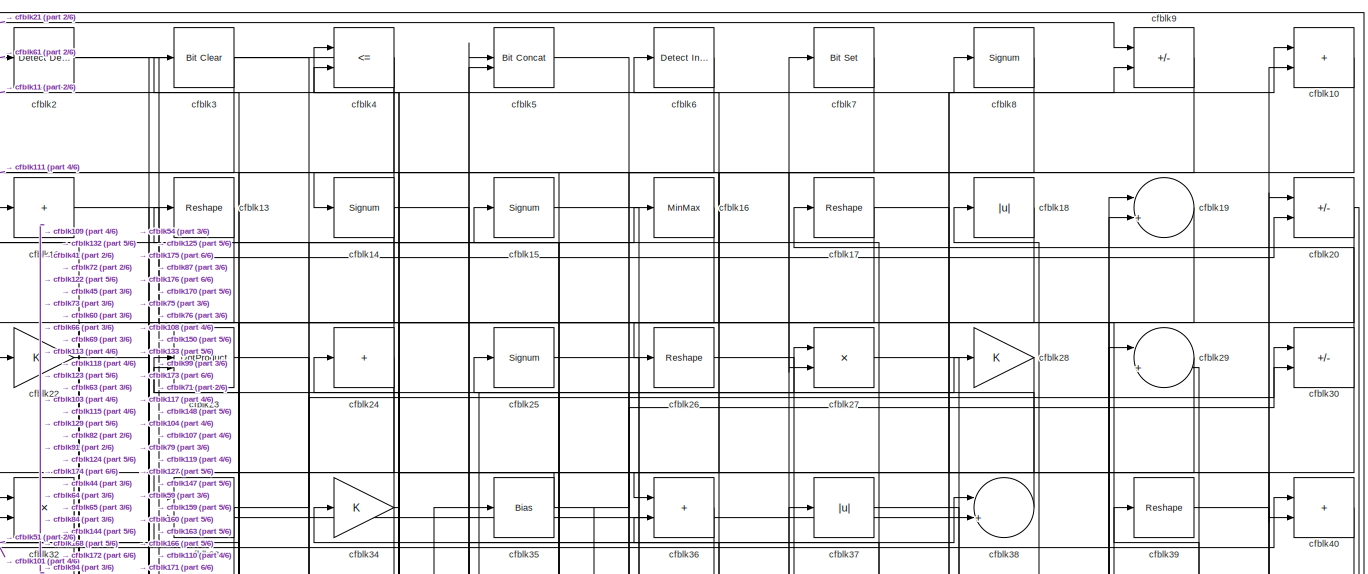
[diagram: root canvas - part 1/6, full width, top band]
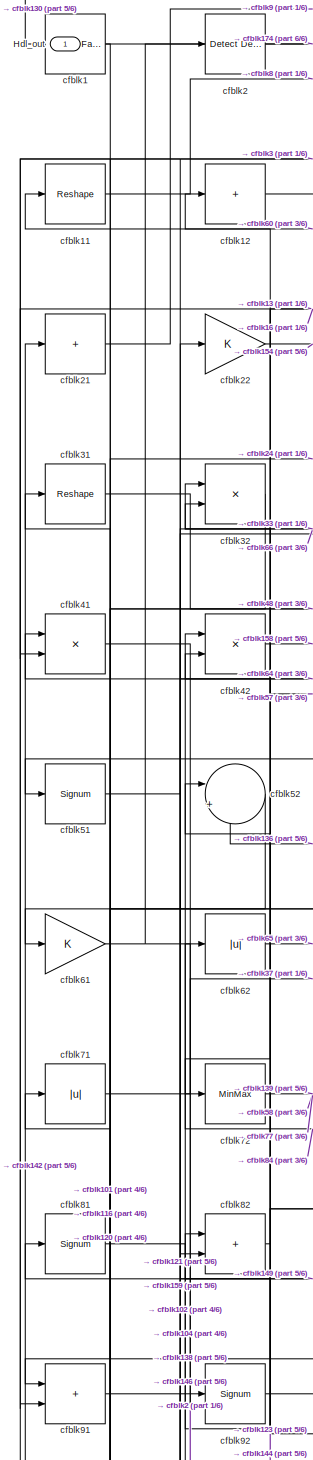
[diagram: root canvas - part 2/6, top left region]
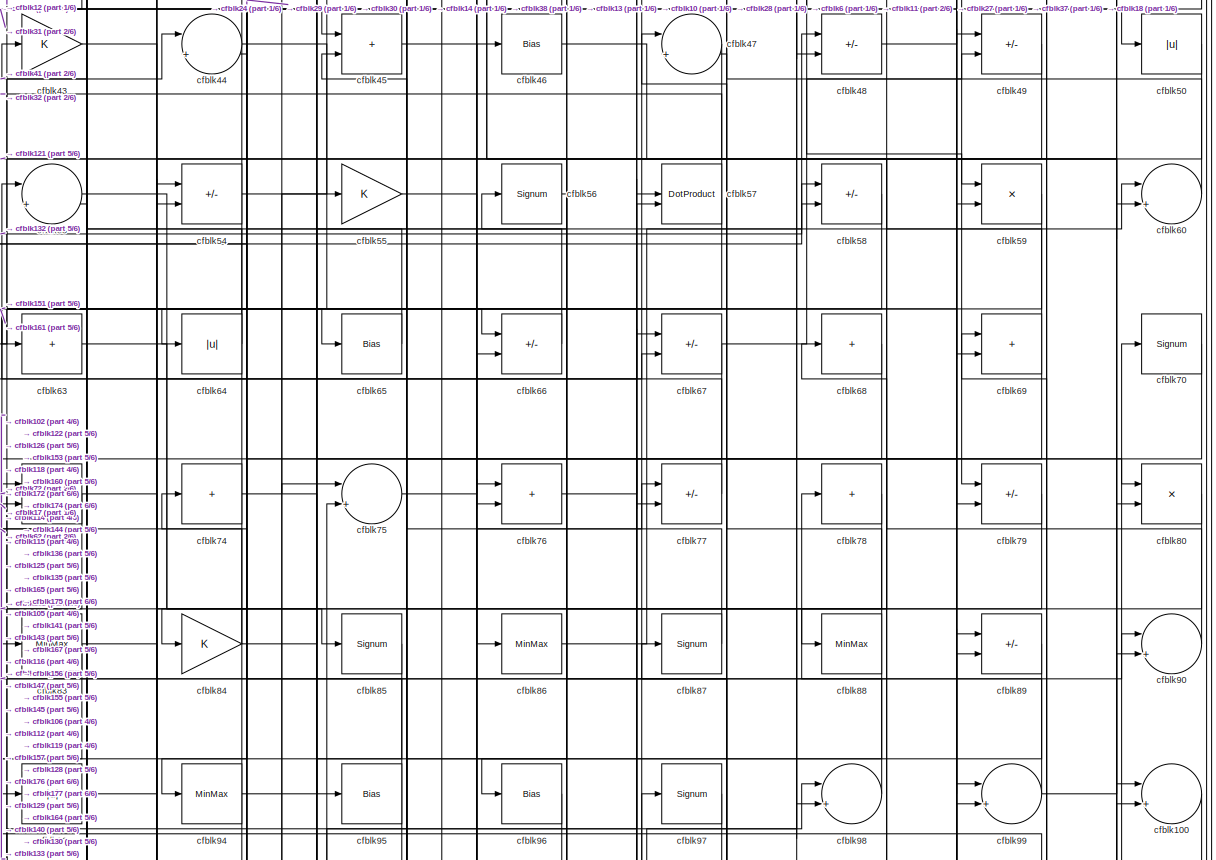
[diagram: root canvas - part 3/6, full width, middle band]
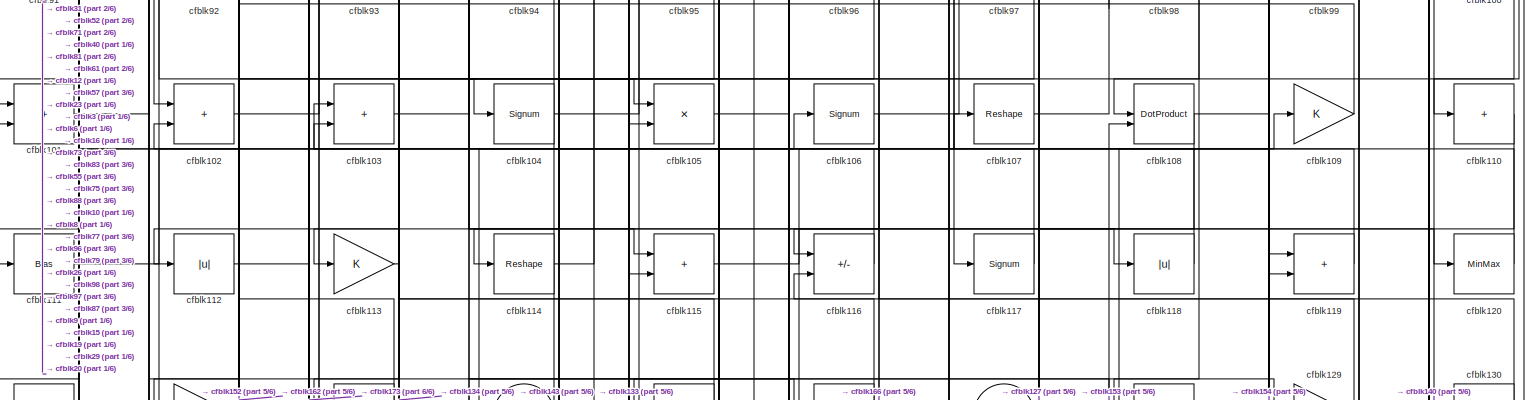
[diagram: root canvas - part 4/6, full width, middle band]
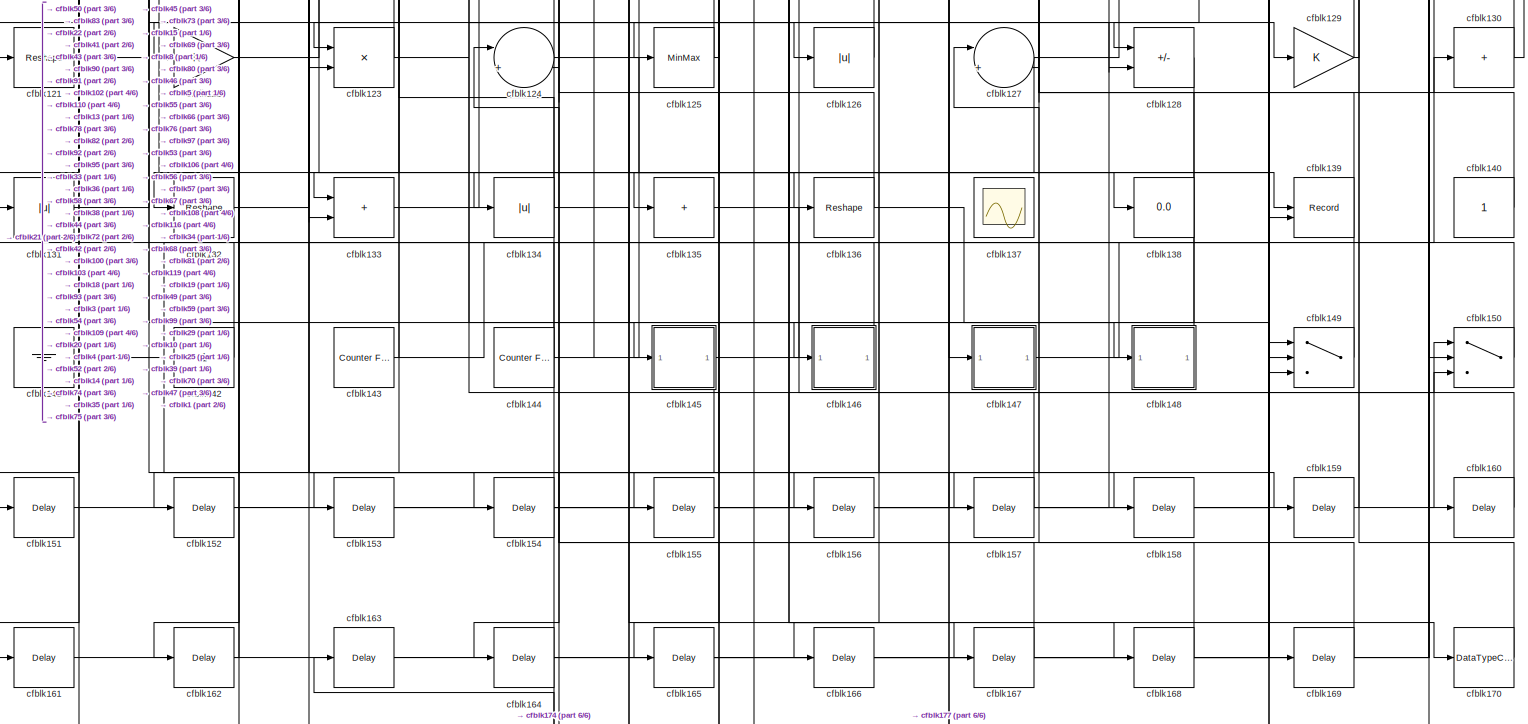
[diagram: root canvas - part 5/6, full width, bottom band]
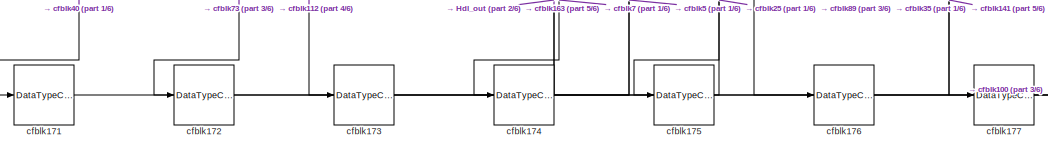
[diagram: root canvas - part 6/6, bottom center region]
MODEL slx_fcb528d1c62f
KIND model
CONFIG AbsTol = auto
CONFIG EnableMultiTasking = off
CONFIG FixedStep = auto
CONFIG MaxStep = auto
CONFIG MinStep = auto
CONFIG RelTol = 1e-3
CONFIG SampleTimeConstraint = Unconstrained
CONFIG SolverName = VariableStepAuto
CONFIG StartTime = 0.0
CONFIG StopTime = 10.0
BLOCK [Outport] Hdl_out
  OutDataTypeStr = uint8
BLOCK [Reference] cfblk1  REF=hdlsllib/Logic and Bit
Operations/Detect Fall
Nonpositive
  SourceBlock = hdlsllib/Logic and Bit\nOperations/Detect Fall\nNonpositive
  SourceType = Detect Fall Nonpositive
BLOCK [Sum] cfblk10
  IconShape = rectangular
  OutDataTypeStr = uint8
BLOCK [Sum] cfblk100
  Inputs = |++
  OutDataTypeStr = uint8
BLOCK [Sum] cfblk101
  IconShape = rectangular
  OutDataTypeStr = uint8
BLOCK [Sum] cfblk102
  IconShape = rectangular
  OutDataTypeStr = uint8
BLOCK [Sum] cfblk103
  IconShape = rectangular
  OutDataTypeStr = uint8
BLOCK [Signum] cfblk104
BLOCK [Product] cfblk105
  Inputs = */
  OutDataTypeStr = uint8
  RndMeth = Zero
  SaturateOnIntegerOverflow = on
BLOCK [Signum] cfblk106
BLOCK [Reshape] cfblk107
BLOCK [DotProduct] cfblk108
  OutDataTypeStr = uint8
BLOCK [Gain] cfblk109
  OutDataTypeStr = uint8
BLOCK [Reshape] cfblk11
BLOCK [Sum] cfblk110
  IconShape = rectangular
  Inputs = +
  OutDataTypeStr = uint8
BLOCK [Bias] cfblk111
  Bias = 0.0
  SaturateOnIntegerOverflow = off
BLOCK [Abs] cfblk112
  OutDataTypeStr = uint8
  SaturateOnIntegerOverflow = off
BLOCK [Gain] cfblk113
  OutDataTypeStr = uint8
BLOCK [Reshape] cfblk114
BLOCK [Sum] cfblk115
  IconShape = rectangular
  OutDataTypeStr = uint8
BLOCK [Sum] cfblk116
  IconShape = rectangular
  Inputs = +-
  OutDataTypeStr = uint8
BLOCK [Signum] cfblk117
BLOCK [Abs] cfblk118
  OutDataTypeStr = uint8
  SaturateOnIntegerOverflow = off
BLOCK [Sum] cfblk119
  IconShape = rectangular
  OutDataTypeStr = uint8
BLOCK [Sum] cfblk12
  IconShape = rectangular
  Inputs = +
  OutDataTypeStr = uint8
BLOCK [MinMax] cfblk120
  OutDataTypeStr = uint8
BLOCK [Reshape] cfblk121
BLOCK [Gain] cfblk122
  OutDataTypeStr = uint8
BLOCK [Product] cfblk123
  Inputs = */
  OutDataTypeStr = uint8
  RndMeth = Zero
  SaturateOnIntegerOverflow = on
BLOCK [Sum] cfblk124
  Inputs = |++
  OutDataTypeStr = uint8
BLOCK [MinMax] cfblk125
  OutDataTypeStr = uint8
BLOCK [Abs] cfblk126
  OutDataTypeStr = uint8
  SaturateOnIntegerOverflow = off
BLOCK [Sum] cfblk127
  Inputs = |++
  OutDataTypeStr = uint8
BLOCK [Sum] cfblk128
  IconShape = rectangular
  Inputs = +-
  OutDataTypeStr = uint8
BLOCK [Gain] cfblk129
  OutDataTypeStr = uint8
BLOCK [Reshape] cfblk13
BLOCK [Sum] cfblk130
  IconShape = rectangular
  Inputs = +
  OutDataTypeStr = uint8
BLOCK [Abs] cfblk131
  OutDataTypeStr = uint8
  SaturateOnIntegerOverflow = off
BLOCK [Reshape] cfblk132
BLOCK [Sum] cfblk133
  IconShape = rectangular
  OutDataTypeStr = uint8
BLOCK [Abs] cfblk134
  OutDataTypeStr = uint8
  SaturateOnIntegerOverflow = off
BLOCK [Sum] cfblk135
  IconShape = rectangular
  Inputs = +
  OutDataTypeStr = uint8
BLOCK [Reshape] cfblk136
BLOCK [Scope] cfblk137
  Floating = on
  NumInputPorts = 1
  ScopeSpecificationString = Simulink.scopes.TimeScopeBlockCfg('CurrentConfiguration', extmgr.ConfigurationSet(extmgr.Configuration('Core','General UI',true,'FigureColor',[0.156862745098039 0.156862745098039 0.156862745098039]),extmgr.Configuration('Core','Source UI',true),extmgr.Configuration('Sources','WiredSimulink',true,'DataLoggingVariableName','ScopeData1','DataLoggingSaveFormat','StructureWithTime','DataLoggingLimitDat...<+2713ch>
BLOCK [Display] cfblk138
  Decimation = 1
BLOCK [Record] cfblk139
  CompatibilityTag = XY
  FileSettingsInternal = {"entries":[{"content":{"excelSettings":{"content":{},"type":"Streamout.ExcelSettings"}},"type":"Streamout.FileSettingStorage","uuid":""}],"packageUris":["http:\/\/schema.mathworks.com\/mf0\/streamout_blocks\/R2020a"],"version":"1.0"}
  Layout = [1 1]
  SignalsInternal = {"entries":[{"content":{"signals":[{"content":{"blockPath":[],"dimensions":[1],"domain":"","lineColor":"#a2142f","plots":[1],"port":1,"signalID":50960,"signalName":"cfblk72"},"type":"RecordBlkView.Signal","uuid":""},{"content":{"blockPath":[],"dimensions":[1],"domain":"","lineColor":"#139fff","plots":[1],"port":2,"signalID":50963,"signalName":"cfblk92"},"type":"RecordBlkView.Signal","uuid":""}]},"...<+142ch>
  VisualizationBindings = {"xyplotplugin":{"info":[{"series":[{"bindingParametersList":[{"parameter":"X-Axis","signalID":50960,"signalName":"cfblk72"},{"parameter":"Y-Axis","signalID":50963,"signalName":"cfblk92"}],"seriesID":62526}],"subplotID":1}]}}
  st = -1
BLOCK [Signum] cfblk14
BLOCK [Constant] cfblk140
  OutDataTypeStr = uint8
  SampleTime = -1
BLOCK [Ground] cfblk141
BLOCK [Constant] cfblk142
  OutDataTypeStr = uint8
  SampleTime = -1
BLOCK [Reference] cfblk143  REF=hdlsllib/Sources/Counter
Free-Running
  SourceBlock = hdlsllib/Sources/Counter\nFree-Running
  SourceType = Counter Free-Running
BLOCK [Reference] cfblk144  REF=hdlsllib/Sources/Counter
Free-Running
  SourceBlock = hdlsllib/Sources/Counter\nFree-Running
  SourceType = Counter Free-Running
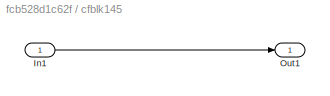
BLOCK [SubSystem] cfblk145
  LibrarySourceBlock = hdlsllib/Ports &\nSubsystems/Subsystem
BLOCK [Inport] cfblk145/In1
BLOCK [Outport] cfblk145/Out1
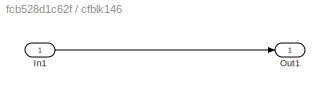
BLOCK [SubSystem] cfblk146
  LibrarySourceBlock = hdlsllib/Ports &\nSubsystems/Subsystem
BLOCK [Inport] cfblk146/In1
BLOCK [Outport] cfblk146/Out1
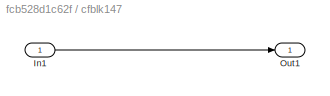
BLOCK [SubSystem] cfblk147
  LibrarySourceBlock = hdlsllib/Ports &\nSubsystems/Subsystem
BLOCK [Inport] cfblk147/In1
BLOCK [Outport] cfblk147/Out1
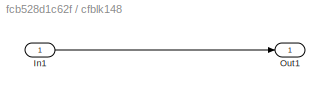
BLOCK [SubSystem] cfblk148
  LibrarySourceBlock = hdlsllib/Ports &\nSubsystems/Subsystem
BLOCK [Inport] cfblk148/In1
BLOCK [Outport] cfblk148/Out1
BLOCK [Switch] cfblk149
  InputSameDT = off
  OutDataTypeStr = uint8
  SaturateOnIntegerOverflow = off
BLOCK [Signum] cfblk15
BLOCK [Switch] cfblk150
  InputSameDT = off
  OutDataTypeStr = uint8
  SaturateOnIntegerOverflow = off
BLOCK [Delay] cfblk151
  InputPortMap = u0
  SampleTime = 1
BLOCK [Delay] cfblk152
  InputPortMap = u0
  SampleTime = 1
BLOCK [Delay] cfblk153
  InputPortMap = u0
  SampleTime = 1
BLOCK [Delay] cfblk154
  InputPortMap = u0
  SampleTime = 1
BLOCK [Delay] cfblk155
  InputPortMap = u0
  SampleTime = 1
BLOCK [Delay] cfblk156
  InputPortMap = u0
  SampleTime = 1
BLOCK [Delay] cfblk157
  InputPortMap = u0
  SampleTime = 1
BLOCK [Delay] cfblk158
  InputPortMap = u0
  SampleTime = 1
BLOCK [Delay] cfblk159
  InputPortMap = u0
  SampleTime = 1
BLOCK [MinMax] cfblk16
  OutDataTypeStr = uint8
BLOCK [Delay] cfblk160
  InputPortMap = u0
  SampleTime = 1
BLOCK [Delay] cfblk161
  InputPortMap = u0
  SampleTime = 1
BLOCK [Delay] cfblk162
  InputPortMap = u0
  SampleTime = 1
BLOCK [Delay] cfblk163
  InputPortMap = u0
  SampleTime = 1
BLOCK [Delay] cfblk164
  InputPortMap = u0
  SampleTime = 1
BLOCK [Delay] cfblk165
  InputPortMap = u0
  SampleTime = 1
BLOCK [Delay] cfblk166
  InputPortMap = u0
  SampleTime = 1
BLOCK [Delay] cfblk167
  InputPortMap = u0
  SampleTime = 1
BLOCK [Delay] cfblk168
  InputPortMap = u0
  SampleTime = 1
BLOCK [Delay] cfblk169
  InputPortMap = u0
  SampleTime = 1
BLOCK [Reshape] cfblk17
BLOCK [DataTypeConversion] cfblk170
  OutDataTypeStr = uint8
  RndMeth = Floor
  SaturateOnIntegerOverflow = off
BLOCK [DataTypeConversion] cfblk171
  OutDataTypeStr = uint8
  RndMeth = Floor
  SaturateOnIntegerOverflow = off
BLOCK [DataTypeConversion] cfblk172
  OutDataTypeStr = uint8
  RndMeth = Floor
  SaturateOnIntegerOverflow = off
BLOCK [DataTypeConversion] cfblk173
  OutDataTypeStr = uint8
  RndMeth = Floor
  SaturateOnIntegerOverflow = off
BLOCK [DataTypeConversion] cfblk174
  OutDataTypeStr = uint8
  RndMeth = Floor
  SaturateOnIntegerOverflow = off
BLOCK [DataTypeConversion] cfblk175
  OutDataTypeStr = uint8
  RndMeth = Floor
  SaturateOnIntegerOverflow = off
BLOCK [DataTypeConversion] cfblk176
  OutDataTypeStr = uint8
  RndMeth = Floor
  SaturateOnIntegerOverflow = off
BLOCK [DataTypeConversion] cfblk177
  OutDataTypeStr = uint8
  RndMeth = Floor
  SaturateOnIntegerOverflow = off
BLOCK [Abs] cfblk18
  OutDataTypeStr = uint8
  SaturateOnIntegerOverflow = off
BLOCK [Sum] cfblk19
  Inputs = |++
  OutDataTypeStr = uint8
BLOCK [Reference] cfblk2  REF=simulink/Logic and Bit
Operations/Detect
Decrease
  LibrarySourceBlock = hdlsllib/Logic and Bit\nOperations/Detect\nDecrease
  SourceBlock = simulink/Logic and Bit\nOperations/Detect\nDecrease
  SourceType = Detect Decrease
BLOCK [Sum] cfblk20
  IconShape = rectangular
  Inputs = +-
  OutDataTypeStr = uint8
BLOCK [Sum] cfblk21
  IconShape = rectangular
  Inputs = +
  OutDataTypeStr = uint8
BLOCK [Gain] cfblk22
  OutDataTypeStr = uint8
BLOCK [DotProduct] cfblk23
  OutDataTypeStr = uint8
BLOCK [Sum] cfblk24
  IconShape = rectangular
  Inputs = +
  OutDataTypeStr = uint8
BLOCK [Signum] cfblk25
BLOCK [Reshape] cfblk26
BLOCK [Product] cfblk27
  Inputs = */
  OutDataTypeStr = uint8
  RndMeth = Zero
  SaturateOnIntegerOverflow = on
BLOCK [Gain] cfblk28
  OutDataTypeStr = uint8
BLOCK [Sum] cfblk29
  Inputs = |++
  OutDataTypeStr = uint8
BLOCK [Reference] cfblk3  REF=simulink/Logic and Bit
Operations/Bit Clear
  LibrarySourceBlock = hdlsllib/Logic and Bit\nOperations/Bit Clear
  SourceBlock = simulink/Logic and Bit\nOperations/Bit Clear
  SourceType = Bit Clear
BLOCK [Sum] cfblk30
  IconShape = rectangular
  Inputs = +-
  OutDataTypeStr = uint8
BLOCK [Reshape] cfblk31
BLOCK [Product] cfblk32
  Inputs = */
  OutDataTypeStr = uint8
  RndMeth = Zero
  SaturateOnIntegerOverflow = on
BLOCK [Product] cfblk33
  Inputs = */
  OutDataTypeStr = uint8
  RndMeth = Zero
  SaturateOnIntegerOverflow = on
BLOCK [Gain] cfblk34
  OutDataTypeStr = uint8
BLOCK [Bias] cfblk35
  Bias = 0.0
  SaturateOnIntegerOverflow = off
BLOCK [Sum] cfblk36
  IconShape = rectangular
  OutDataTypeStr = uint8
BLOCK [Abs] cfblk37
  OutDataTypeStr = uint8
  SaturateOnIntegerOverflow = off
BLOCK [Sum] cfblk38
  Inputs = |++
  OutDataTypeStr = uint8
BLOCK [Reshape] cfblk39
BLOCK [RelationalOperator] cfblk4
  InputSameDT = off
  Operator = <=
  OutDataTypeStr = boolean
BLOCK [Sum] cfblk40
  IconShape = rectangular
  OutDataTypeStr = uint8
BLOCK [Product] cfblk41
  Inputs = */
  OutDataTypeStr = uint8
  RndMeth = Zero
  SaturateOnIntegerOverflow = on
BLOCK [Product] cfblk42
  Inputs = */
  OutDataTypeStr = uint8
  RndMeth = Zero
  SaturateOnIntegerOverflow = on
BLOCK [Gain] cfblk43
  OutDataTypeStr = uint8
BLOCK [Sum] cfblk44
  Inputs = |++
  OutDataTypeStr = uint8
BLOCK [Sum] cfblk45
  IconShape = rectangular
  OutDataTypeStr = uint8
BLOCK [Bias] cfblk46
  Bias = 0.0
  SaturateOnIntegerOverflow = off
BLOCK [Sum] cfblk47
  Inputs = |++
  OutDataTypeStr = uint8
BLOCK [Sum] cfblk48
  IconShape = rectangular
  Inputs = +-
  OutDataTypeStr = uint8
BLOCK [Sum] cfblk49
  IconShape = rectangular
  Inputs = +-
  OutDataTypeStr = uint8
BLOCK [Reference] cfblk5  REF=hdlsllib/Logic and Bit
Operations/Bit Concat
  SourceBlock = hdlsllib/Logic and Bit\nOperations/Bit Concat
  SourceType = Bit Concat
BLOCK [Abs] cfblk50
  OutDataTypeStr = uint8
  SaturateOnIntegerOverflow = off
BLOCK [Signum] cfblk51
BLOCK [Sum] cfblk52
  Inputs = |++
  OutDataTypeStr = uint8
BLOCK [Sum] cfblk53
  Inputs = |++
  OutDataTypeStr = uint8
BLOCK [Sum] cfblk54
  IconShape = rectangular
  Inputs = +-
  OutDataTypeStr = uint8
BLOCK [Gain] cfblk55
  OutDataTypeStr = uint8
BLOCK [Signum] cfblk56
BLOCK [DotProduct] cfblk57
  OutDataTypeStr = uint8
BLOCK [Sum] cfblk58
  IconShape = rectangular
  Inputs = +-
  OutDataTypeStr = uint8
BLOCK [Product] cfblk59
  Inputs = */
  OutDataTypeStr = uint8
  RndMeth = Zero
  SaturateOnIntegerOverflow = on
BLOCK [Reference] cfblk6  REF=simulink/Logic and Bit
Operations/Detect
Increase
  LibrarySourceBlock = hdlsllib/Logic and Bit\nOperations/Detect\nIncrease
  SourceBlock = simulink/Logic and Bit\nOperations/Detect\nIncrease
  SourceType = Detect Increase
BLOCK [Sum] cfblk60
  Inputs = |++
  OutDataTypeStr = uint8
BLOCK [Gain] cfblk61
  OutDataTypeStr = uint8
BLOCK [Abs] cfblk62
  OutDataTypeStr = uint8
  SaturateOnIntegerOverflow = off
BLOCK [Sum] cfblk63
  IconShape = rectangular
  Inputs = +
  OutDataTypeStr = uint8
BLOCK [Abs] cfblk64
  OutDataTypeStr = uint8
  SaturateOnIntegerOverflow = off
BLOCK [Bias] cfblk65
  Bias = 0.0
  SaturateOnIntegerOverflow = off
BLOCK [Sum] cfblk66
  IconShape = rectangular
  Inputs = +-
  OutDataTypeStr = uint8
BLOCK [Sum] cfblk67
  IconShape = rectangular
  Inputs = +-
  OutDataTypeStr = uint8
BLOCK [Sum] cfblk68
  IconShape = rectangular
  Inputs = +
  OutDataTypeStr = uint8
BLOCK [Sum] cfblk69
  IconShape = rectangular
  OutDataTypeStr = uint8
BLOCK [Reference] cfblk7  REF=simulink/Logic and Bit
Operations/Bit Set
  LibrarySourceBlock = hdlsllib/Logic and Bit\nOperations/Bit Set
  SourceBlock = simulink/Logic and Bit\nOperations/Bit Set
  SourceType = Bit Set
BLOCK [Signum] cfblk70
BLOCK [Abs] cfblk71
  OutDataTypeStr = uint8
  SaturateOnIntegerOverflow = off
BLOCK [MinMax] cfblk72
  OutDataTypeStr = uint8
BLOCK [Product] cfblk73
  Inputs = */
  OutDataTypeStr = uint8
  RndMeth = Zero
  SaturateOnIntegerOverflow = on
BLOCK [Sum] cfblk74
  IconShape = rectangular
  Inputs = +
  OutDataTypeStr = uint8
BLOCK [Sum] cfblk75
  Inputs = |++
  OutDataTypeStr = uint8
BLOCK [Sum] cfblk76
  IconShape = rectangular
  OutDataTypeStr = uint8
BLOCK [Sum] cfblk77
  IconShape = rectangular
  Inputs = +-
  OutDataTypeStr = uint8
BLOCK [Sum] cfblk78
  IconShape = rectangular
  Inputs = +
  OutDataTypeStr = uint8
BLOCK [Sum] cfblk79
  IconShape = rectangular
  Inputs = +-
  OutDataTypeStr = uint8
BLOCK [Signum] cfblk8
BLOCK [Product] cfblk80
  Inputs = */
  OutDataTypeStr = uint8
  RndMeth = Zero
  SaturateOnIntegerOverflow = on
BLOCK [Signum] cfblk81
BLOCK [Sum] cfblk82
  IconShape = rectangular
  OutDataTypeStr = uint8
BLOCK [MinMax] cfblk83
  OutDataTypeStr = uint8
BLOCK [Gain] cfblk84
  OutDataTypeStr = uint8
BLOCK [Signum] cfblk85
BLOCK [MinMax] cfblk86
  OutDataTypeStr = uint8
BLOCK [Signum] cfblk87
BLOCK [MinMax] cfblk88
  OutDataTypeStr = uint8
BLOCK [Sum] cfblk89
  IconShape = rectangular
  Inputs = +-
  OutDataTypeStr = uint8
BLOCK [Sum] cfblk9
  IconShape = rectangular
  Inputs = +-
  OutDataTypeStr = uint8
BLOCK [Sum] cfblk90
  Inputs = |++
  OutDataTypeStr = uint8
BLOCK [Sum] cfblk91
  IconShape = rectangular
  OutDataTypeStr = uint8
BLOCK [Signum] cfblk92
BLOCK [Abs] cfblk93
  OutDataTypeStr = uint8
  SaturateOnIntegerOverflow = off
BLOCK [MinMax] cfblk94
  OutDataTypeStr = uint8
BLOCK [Bias] cfblk95
  Bias = 0.0
  SaturateOnIntegerOverflow = off
BLOCK [Bias] cfblk96
  Bias = 0.0
  SaturateOnIntegerOverflow = off
BLOCK [Signum] cfblk97
BLOCK [Sum] cfblk98
  Inputs = |++
  OutDataTypeStr = uint8
BLOCK [Sum] cfblk99
  Inputs = |++
  OutDataTypeStr = uint8
LINE cfblk100:1 -> cfblk133:1
LINE cfblk101:1 -> cfblk40:1
LINE cfblk102:1 -> cfblk57:2
LINE cfblk103:1 -> cfblk16:1
LINE cfblk104:1 -> cfblk10:1
LINE cfblk105:1 -> cfblk77:1
NET cfblk106:1 -> cfblk166:1, cfblk98:1
LINE cfblk107:1 -> cfblk9:2
NET cfblk108:1 -> cfblk127:2, cfblk29:1
LINE cfblk109:1 -> cfblk12:1
NET cfblk10:1 -> cfblk26:1, cfblk27:2, cfblk76:2
LINE cfblk110:1 -> cfblk152:1
LINE cfblk111:1 -> cfblk106:1
LINE cfblk112:1 -> cfblk173:1
LINE cfblk113:1 -> cfblk3:1
NET cfblk114:1 -> cfblk55:1, cfblk75:1
LINE cfblk115:1 -> cfblk120:1
LINE cfblk116:1 -> cfblk71:1
LINE cfblk117:1 -> cfblk107:1
LINE cfblk118:1 -> cfblk23:2
LINE cfblk119:1 -> cfblk87:1
LINE cfblk11:1 -> cfblk8:1
LINE cfblk120:1 -> cfblk31:1
NET cfblk121:1 -> cfblk128:2, cfblk22:1
NET cfblk122:1 -> cfblk38:2, cfblk44:1
NET cfblk123:1 -> cfblk126:1, cfblk145:1, cfblk42:2
LINE cfblk124:1 -> cfblk149:2
NET cfblk125:1 -> cfblk45:2, cfblk73:1
LINE cfblk126:1 -> cfblk53:2
NET cfblk127:1 -> cfblk134:1, cfblk19:2
LINE cfblk128:1 -> cfblk155:1
NET cfblk129:1 -> cfblk36:2, cfblk69:1
NET cfblk12:1 -> cfblk45:1, cfblk59:1
NET cfblk130:1 -> cfblk1:1, cfblk47:1
NET cfblk131:1 -> cfblk43:1, cfblk90:1
NET cfblk132:1 -> cfblk20:2, cfblk58:1
LINE cfblk133:1 -> cfblk109:1
NET cfblk134:1 -> cfblk103:1, cfblk148:1
LINE cfblk135:1 -> cfblk150:1
NET cfblk136:1 -> cfblk169:1, cfblk52:2
NET cfblk13:1 -> cfblk132:1, cfblk41:2
NET cfblk140:1 -> cfblk116:2, cfblk70:1
NET cfblk141:1 -> cfblk177:1, cfblk59:2, cfblk66:2
LINE cfblk142:1 -> cfblk21:1
NET cfblk143:1 -> cfblk103:2, cfblk46:1
NET cfblk144:1 -> cfblk130:1, cfblk35:1, cfblk75:2, cfblk92:1
LINE cfblk145/In1:1 -> cfblk145/Out1:1
NET cfblk145:1 -> cfblk164:1, cfblk97:1
LINE cfblk146/In1:1 -> cfblk146/Out1:1
LINE cfblk146:1 -> cfblk82:1
LINE cfblk147/In1:1 -> cfblk147/Out1:1
LINE cfblk147:1 -> cfblk19:1
LINE cfblk148/In1:1 -> cfblk148/Out1:1
LINE cfblk148:1 -> cfblk34:1
LINE cfblk149:1 -> cfblk81:1
NET cfblk14:1 -> cfblk168:1, cfblk63:1
LINE cfblk150:1 -> cfblk15:1
LINE cfblk151:1 -> cfblk76:1
LINE cfblk152:1 -> cfblk150:3
LINE cfblk153:1 -> cfblk108:2
LINE cfblk154:1 -> cfblk119:1
LINE cfblk155:1 -> cfblk67:1
LINE cfblk156:1 -> cfblk49:1
LINE cfblk157:1 -> cfblk57:1
LINE cfblk158:1 -> cfblk149:1
LINE cfblk159:1 -> cfblk29:2
LINE cfblk15:1 -> cfblk108:1
LINE cfblk160:1 -> cfblk54:1
LINE cfblk161:1 -> cfblk149:3
LINE cfblk162:1 -> cfblk102:2
LINE cfblk163:1 -> cfblk10:2
LINE cfblk164:1 -> cfblk80:2
LINE cfblk165:1 -> cfblk99:2
LINE cfblk166:1 -> cfblk20:1
LINE cfblk167:1 -> cfblk124:1
LINE cfblk168:1 -> cfblk4:2
LINE cfblk169:1 -> cfblk127:1
LINE cfblk16:1 -> cfblk72:1
LINE cfblk170:1 -> cfblk39:1
LINE cfblk171:1 -> cfblk5:1
LINE cfblk172:1 -> cfblk5:2
LINE cfblk173:1 -> cfblk7:1
NET cfblk174:1 -> Hdl_out:1, cfblk100:2, cfblk163:1
LINE cfblk175:1 -> cfblk25:1
LINE cfblk176:1 -> cfblk89:1
LINE cfblk177:1 -> cfblk89:2
NET cfblk17:1 -> cfblk40:2, cfblk73:2
LINE cfblk18:1 -> cfblk123:1
LINE cfblk19:1 -> cfblk119:2
LINE cfblk1:1 -> cfblk61:1
NET cfblk20:1 -> cfblk110:1, cfblk124:2
LINE cfblk21:1 -> cfblk9:1
LINE cfblk22:1 -> cfblk154:1
LINE cfblk23:1 -> cfblk115:1
LINE cfblk24:1 -> cfblk51:1
LINE cfblk25:1 -> cfblk150:2
LINE cfblk26:1 -> cfblk117:1
LINE cfblk27:1 -> cfblk79:1
LINE cfblk28:1 -> cfblk84:1
LINE cfblk29:1 -> cfblk44:2
NET cfblk2:1 -> cfblk60:2, cfblk66:1, cfblk69:2
NET cfblk30:1 -> cfblk17:1, cfblk64:1
LINE cfblk31:1 -> cfblk48:2
LINE cfblk32:1 -> cfblk91:1
NET cfblk33:1 -> cfblk123:2, cfblk30:1
LINE cfblk34:1 -> cfblk4:1
NET cfblk35:1 -> cfblk176:1, cfblk30:2, cfblk33:1
LINE cfblk36:1 -> cfblk133:2
LINE cfblk37:1 -> cfblk99:1
LINE cfblk38:1 -> cfblk23:1
LINE cfblk39:1 -> cfblk160:1
NET cfblk3:1 -> cfblk129:1, cfblk82:2, cfblk91:2
LINE cfblk40:1 -> cfblk171:1
NET cfblk41:1 -> cfblk138:1, cfblk146:1
LINE cfblk42:1 -> cfblk158:1
LINE cfblk43:1 -> cfblk85:1
LINE cfblk44:1 -> cfblk147:1
LINE cfblk45:1 -> cfblk86:1
LINE cfblk46:1 -> cfblk100:1
NET cfblk47:1 -> cfblk54:2, cfblk96:1
LINE cfblk48:1 -> cfblk50:1
LINE cfblk49:1 -> cfblk88:1
LINE cfblk4:1 -> cfblk14:1
LINE cfblk50:1 -> cfblk121:1
LINE cfblk51:1 -> cfblk33:2
LINE cfblk52:1 -> cfblk101:1
LINE cfblk53:1 -> cfblk98:2
NET cfblk54:1 -> cfblk27:1, cfblk79:2
LINE cfblk55:1 -> cfblk167:1
LINE cfblk56:1 -> cfblk156:1
NET cfblk57:1 -> cfblk32:2, cfblk83:1
LINE cfblk58:1 -> cfblk151:1
LINE cfblk59:1 -> cfblk161:1
LINE cfblk5:1 -> cfblk170:1
LINE cfblk60:1 -> cfblk11:1
NET cfblk61:1 -> cfblk104:1, cfblk2:1
LINE cfblk62:1 -> cfblk65:1
LINE cfblk63:1 -> cfblk95:1
LINE cfblk64:1 -> cfblk41:1
LINE cfblk65:1 -> cfblk24:1
LINE cfblk66:1 -> cfblk32:1
NET cfblk67:1 -> cfblk49:2, cfblk94:1
LINE cfblk68:1 -> cfblk157:1
NET cfblk69:1 -> cfblk165:1, cfblk18:1
LINE cfblk6:1 -> cfblk113:1
LINE cfblk70:1 -> cfblk128:1
LINE cfblk71:1 -> cfblk37:1
NET cfblk72:1 -> cfblk139:1, cfblk58:2, cfblk77:2
NET cfblk73:1 -> cfblk105:1, cfblk118:1, cfblk172:1
LINE cfblk74:1 -> cfblk136:1
LINE cfblk75:1 -> cfblk28:1
LINE cfblk76:1 -> cfblk80:1
LINE cfblk77:1 -> cfblk53:1
LINE cfblk78:1 -> cfblk162:1
LINE cfblk79:1 -> cfblk116:1
LINE cfblk7:1 -> cfblk174:1
LINE cfblk80:1 -> cfblk135:1
LINE cfblk81:1 -> cfblk102:1
LINE cfblk82:1 -> cfblk52:1
NET cfblk83:1 -> cfblk105:2, cfblk131:1
NET cfblk84:1 -> cfblk60:1, cfblk62:1
LINE cfblk85:1 -> cfblk93:1
LINE cfblk86:1 -> cfblk48:1
LINE cfblk87:1 -> cfblk13:1
NET cfblk88:1 -> cfblk115:2, cfblk47:2
LINE cfblk89:1 -> cfblk175:1
NET cfblk8:1 -> cfblk101:2, cfblk111:1, cfblk125:1
LINE cfblk90:1 -> cfblk68:1
NET cfblk91:1 -> cfblk159:1, cfblk42:1
LINE cfblk92:1 -> cfblk139:2
NET cfblk93:1 -> cfblk153:1, cfblk67:2
LINE cfblk94:1 -> cfblk38:1
NET cfblk95:1 -> cfblk122:1, cfblk74:1
LINE cfblk96:1 -> cfblk114:1
LINE cfblk97:1 -> cfblk112:1
LINE cfblk98:1 -> cfblk78:1
NET cfblk99:1 -> cfblk56:1, cfblk6:1, cfblk90:2
LINE cfblk9:1 -> cfblk36:1
note: NET lines group one-source signal fan-out (src -> all destinations, sorted); 1:1 wires keep LINE
